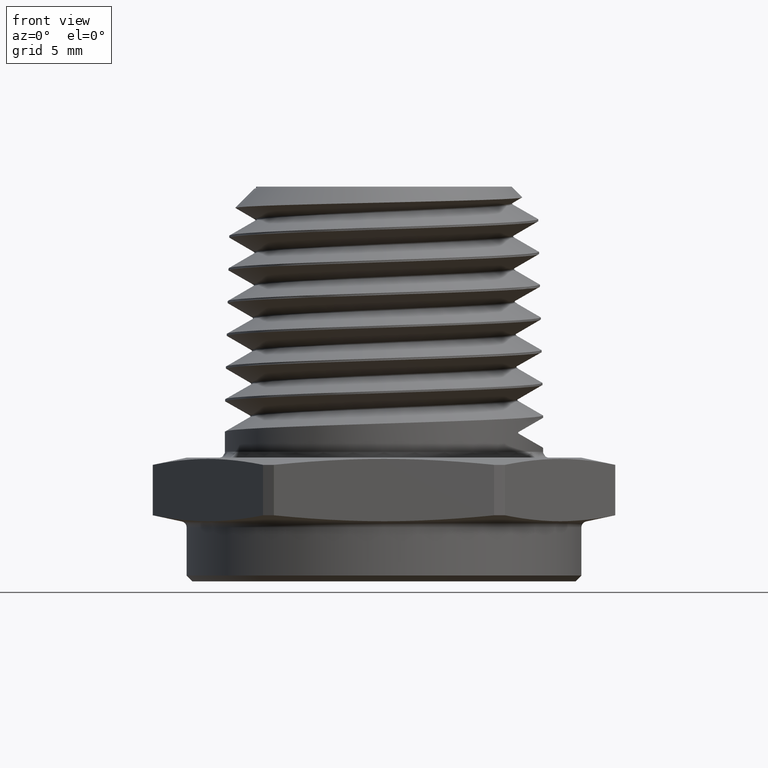
[diagram: clean part render]
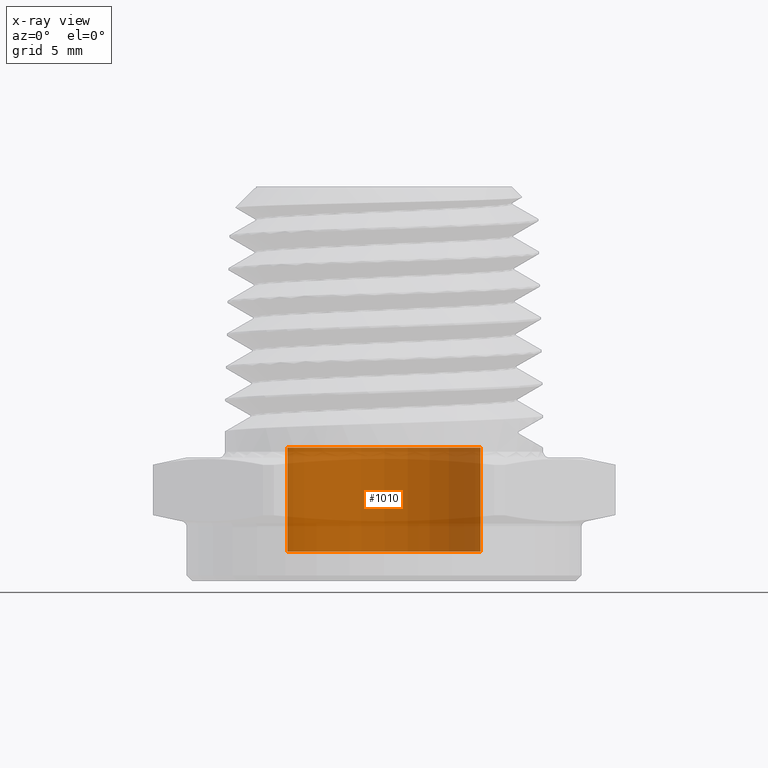
[diagram: x-ray — body ghosted, one internal face saturated and labeled with its STEP entity id]
A machine part, front view, then the same camera in x-ray: the body is ghosted and one INTERNAL B-rep face — a face not visible from any outside direction — is saturated and labeled: STEP entity #1010.
In plain terms, the highlighted cylindrical surface (partial cylindrical patch) has radius 4.191 mm, axis along (-0, 0, -1).
Its self-contained STEP definition (entity closure, byte-faithful):
#582 = DIRECTION ( 'NONE',  ( -1.000000000000000000, 0.0000000000000000000, 0.0000000000000000000 ) ) ;
#583 = CARTESIAN_POINT ( 'NONE',  ( -1.333458843753816200E-017, 0.0000000000000000000, 0.1968503937007874100 ) ) ;
#584 = DIRECTION ( 'NONE',  ( -0.0000000000000000000, -0.0000000000000000000, -1.000000000000000000 ) ) ;
#634 = CARTESIAN_POINT ( 'NONE',  ( 0.1650000000000000100, 2.020667218593132900E-017, 0.009999999999999995000 ) ) ;
#635 = CARTESIAN_POINT ( 'NONE',  ( -0.1650000000000000100, 0.0000000000000000000, 0.009999999999999995000 ) ) ;
#637 = CARTESIAN_POINT ( 'NONE',  ( -0.1650000000000000100, 0.0000000000000000000, 0.1868503937007872700 ) ) ;
#638 = CARTESIAN_POINT ( 'NONE',  ( 0.1650000000000000100, 2.020667218593132900E-017, 0.1868503937007872700 ) ) ;
#1010 = ADVANCED_FACE ( 'NONE', ( #2170 ), #2169, .T. ) ;
#1364 = VERTEX_POINT ( 'NONE', #634 ) ;
#1365 = VERTEX_POINT ( 'NONE', #635 ) ;
#1367 = VERTEX_POINT ( 'NONE', #637 ) ;
#1368 = VERTEX_POINT ( 'NONE', #638 ) ;
#1625 = EDGE_LOOP ( 'NONE', ( #1693, #1694, #1695, #1696 ) ) ;
#1693 = ORIENTED_EDGE ( 'NONE', *, *, #1710, .T. ) ;
#1694 = ORIENTED_EDGE ( 'NONE', *, *, #1712, .T. ) ;
#1695 = ORIENTED_EDGE ( 'NONE', *, *, #1706, .T. ) ;
#1696 = ORIENTED_EDGE ( 'NONE', *, *, #1713, .F. ) ;
#1706 = EDGE_CURVE ( 'NONE', #1364, #1365, #4678, .T. ) ;
#1710 = EDGE_CURVE ( 'NONE', #1367, #1368, #4684, .T. ) ;
#1712 = EDGE_CURVE ( 'NONE', #1368, #1364, #4685, .T. ) ;
#1713 = EDGE_CURVE ( 'NONE', #1367, #1365, #4690, .T. ) ;
#2169 = CYLINDRICAL_SURFACE ( 'NONE', #2277, 0.1650000000000000100 ) ;
#2170 = FACE_OUTER_BOUND ( 'NONE', #1625, .T. ) ;
#2277 = AXIS2_PLACEMENT_3D ( 'NONE', #583, #584, #582 ) ;
#2316 = AXIS2_PLACEMENT_3D ( 'NONE', #4821, #4822, #4823 ) ;
#2318 = AXIS2_PLACEMENT_3D ( 'NONE', #4832, #4833, #4834 ) ;
#4678 = CIRCLE ( 'NONE', #2316, 0.1650000000000000100 ) ;
#4684 = CIRCLE ( 'NONE', #2318, 0.1650000000000000100 ) ;
#4685 = LINE ( 'NONE', #4831, #4691 ) ;
#4690 = LINE ( 'NONE', #4836, #4693 ) ;
#4691 = VECTOR ( 'NONE', #4835, 39.37007874015748100 ) ;
#4693 = VECTOR ( 'NONE', #4837, 39.37007874015748100 ) ;
#4821 = CARTESIAN_POINT ( 'NONE',  ( -1.333458843753816200E-017, 0.0000000000000000000, 0.009999999999999995000 ) ) ;
#4822 = DIRECTION ( 'NONE',  ( -0.0000000000000000000, -0.0000000000000000000, 1.000000000000000000 ) ) ;
#4823 = DIRECTION ( 'NONE',  ( 1.000000000000000000, 0.0000000000000000000, 0.0000000000000000000 ) ) ;
#4831 = CARTESIAN_POINT ( 'NONE',  ( 0.1650000000000000100, 2.020667218593132900E-017, 0.1968503937007874100 ) ) ;
#4832 = CARTESIAN_POINT ( 'NONE',  ( -1.333458843753816200E-017, 0.0000000000000000000, 0.1868503937007872700 ) ) ;
#4833 = DIRECTION ( 'NONE',  ( 0.0000000000000000000, 0.0000000000000000000, -1.000000000000000000 ) ) ;
#4834 = DIRECTION ( 'NONE',  ( 1.000000000000000000, 0.0000000000000000000, 0.0000000000000000000 ) ) ;
#4835 = DIRECTION ( 'NONE',  ( -0.0000000000000000000, -0.0000000000000000000, -1.000000000000000000 ) ) ;
#4836 = CARTESIAN_POINT ( 'NONE',  ( -0.1650000000000000100, 0.0000000000000000000, 0.1968503937007874100 ) ) ;
#4837 = DIRECTION ( 'NONE',  ( -0.0000000000000000000, -0.0000000000000000000, -1.000000000000000000 ) ) ;